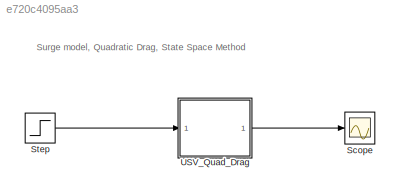
MODEL slx_e720c4095aa3
KIND model
CONFIG AbsTol = auto
CONFIG FixedStep = auto
CONFIG MaxStep = auto
CONFIG MinStep = auto
CONFIG RelTol = 1e-3
CONFIG SampleTimeConstraint = Unconstrained
CONFIG Solver = VariableStepAuto
CONFIG SolverMode = Auto
CONFIG SolverName = VariableStepAuto
CONFIG StartTime = 0.0
CONFIG StopTime = 10
BLOCK [Scope] Scope
  Ports = [1]
  ScopeSpecificationString = Simulink.scopes.TimeScopeBlockCfg('CurrentConfiguration', extmgr.ConfigurationSet(extmgr.Configuration('Core','General UI',true),extmgr.Configuration('Core','Source UI',true),extmgr.Configuration('Sources','WiredSimulink',true),extmgr.Configuration('Visuals','Time Domain',true,'SerializedDisplays',{struct('MinYLimReal','-0.13934','MaxYLimReal','1.25405','YLabelReal','','MinYLimMag','0.00000','MaxY...<+1388ch>
BLOCK [Step] Step
  After = 21
  SampleTime = 0
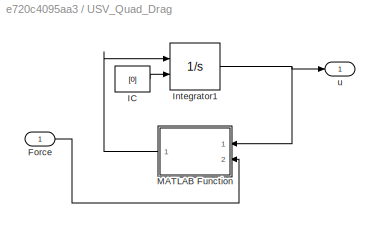
BLOCK [SubSystem] USV_Quad_Drag
  Ports = [1, 1]
  RequestExecContextInheritance = off
  Variant = off
BLOCK [Inport] USV_Quad_Drag/Force
  IconDisplay = Port number
BLOCK [Constant] USV_Quad_Drag/IC
  Value = [0]
BLOCK [Integrator] USV_Quad_Drag/Integrator1
  InitialConditionSource = external
  Ports = [2, 1]
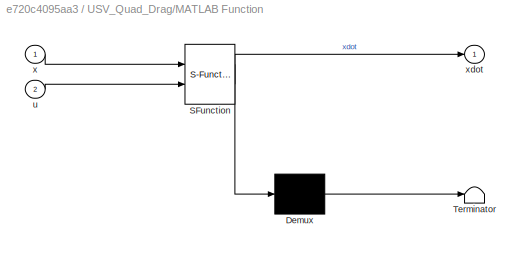
BLOCK [SubSystem] USV_Quad_Drag/MATLAB Function
  ErrorFcn = Stateflow.Translate.translate
  PermitHierarchicalResolution = ExplicitOnly
  Ports = [2, 1]
  RequestExecContextInheritance = off
  SFBlockType = MATLAB Function
  TreatAsAtomicUnit = on
  Variant = off
BLOCK [Demux] USV_Quad_Drag/MATLAB Function/ Demux 
  Outputs = 1
  Ports = [1, 1]
BLOCK [S-Function] USV_Quad_Drag/MATLAB Function/ SFunction 
  EnableBusSupport = on
  FunctionName = sf_sfun
  PortCounts = [2 2]
  Ports = [2, 2]
  SFunctionDeploymentMode = off
  Tag = Stateflow S-Function quad_drag_ssmethod 2
BLOCK [Terminator] USV_Quad_Drag/MATLAB Function/ Terminator 
BLOCK [Inport] USV_Quad_Drag/MATLAB Function/u
  IconDisplay = Port number
  Port = 2
BLOCK [Inport] USV_Quad_Drag/MATLAB Function/x
  IconDisplay = Port number
BLOCK [Outport] USV_Quad_Drag/MATLAB Function/xdot
  IconDisplay = Port number
BLOCK [Outport] USV_Quad_Drag/u
  IconDisplay = Port number
ANNOTATION (root): Surge model, Quadratic Drag, State Space Method
LINE Step:1 -> USV_Quad_Drag:1
LINE USV_Quad_Drag/Force:1 -> USV_Quad_Drag/MATLAB Function:2
LINE USV_Quad_Drag/IC:1 -> USV_Quad_Drag/Integrator1:2
NET USV_Quad_Drag/Integrator1:1 -> USV_Quad_Drag/MATLAB Function:1, USV_Quad_Drag/u:1
LINE USV_Quad_Drag/MATLAB Function:1 -> USV_Quad_Drag/Integrator1:1
LINE USV_Quad_Drag:1 -> Scope:1
note: NET lines group one-source signal fan-out (src -> all destinations, sorted); 1:1 wires keep LINE
CHART USV_Quad_Drag/MATLAB Function states=1 transitions=1
  STATE_LABEL 'eML_blk_kernel()'
  STATE_LABEL 'SCRIPT:\nfunction xdot = fcn(x,u)\n%#codegen\n\n% x - state of the system.  surge velocity.\n% u - input. thrust force\n% Model parameters\nm = 28.0;   % Mass [kg]\nd = 16.9;  % Quadratic drag coefficient [N/(m/s)^2]\n\nxdot = 1/m*(-d*abs(x)*x+u);\n'
